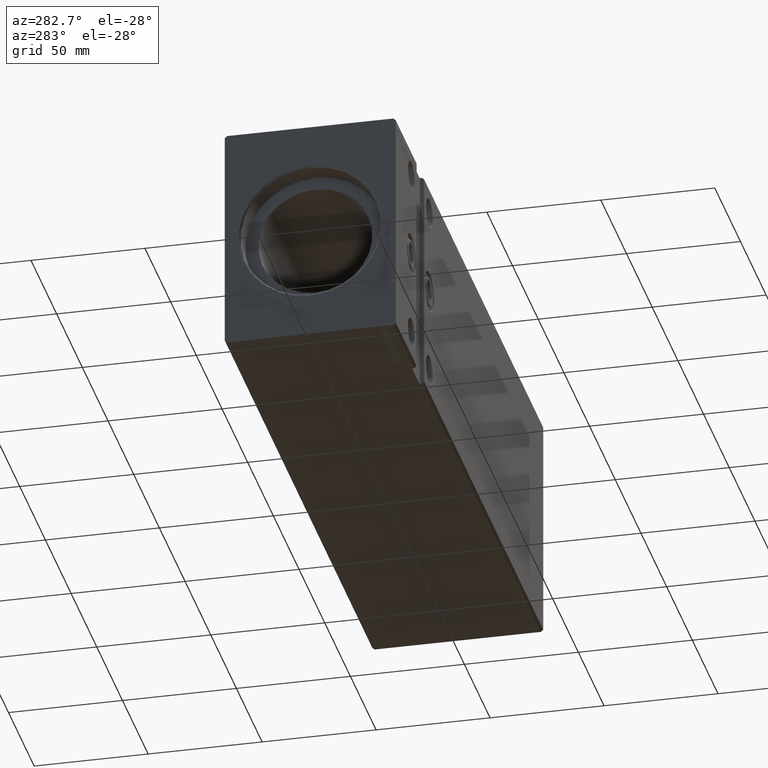
[diagram: clean part render]
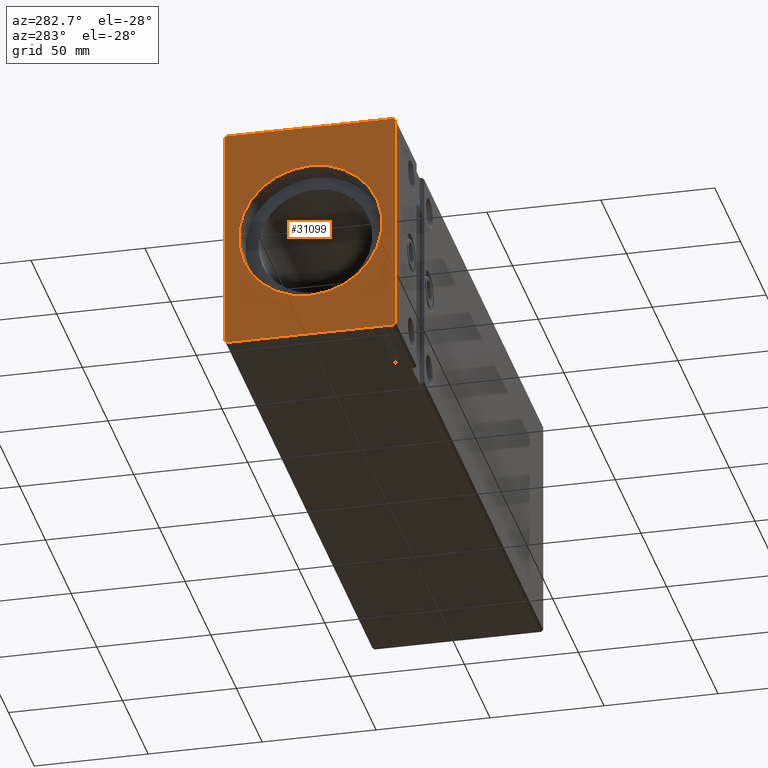
[diagram: same view with one face highlighted and labeled with its STEP entity id]
A machine part, auxiliary view. The second image highlights one B-rep face of the part: STEP entity #31099.
In plain terms, the highlighted planar face has unit normal (1, 0, 0).
Its self-contained STEP definition (entity closure, byte-faithful):
#644 = CIRCLE ( 'NONE', #24320, 31.45000000000008811 ) ;
#803 = CARTESIAN_POINT ( 'NONE',  ( 0.000000000000000000, -36.50000000000000711, -50.00000000000000000 ) ) ;
#1093 = EDGE_CURVE ( 'NONE', #34619, #20611, #16649, .T. ) ;
#1545 = DIRECTION ( 'NONE',  ( 0.000000000000000000, 0.000000000000000000, -1.000000000000000000 ) ) ;
#1587 = DIRECTION ( 'NONE',  ( 0.000000000000000000, -1.000000000000000000, -1.901066822988281457E-16 ) ) ;
#3058 = VERTEX_POINT ( 'NONE', #30773 ) ;
#3745 = DIRECTION ( 'NONE',  ( 1.000000000000000000, 0.000000000000000000, 0.000000000000000000 ) ) ;
#3915 = LINE ( 'NONE', #35020, #33631 ) ;
#4011 = VERTEX_POINT ( 'NONE', #36931 ) ;
#4097 = EDGE_CURVE ( 'NONE', #29917, #3058, #9929, .T. ) ;
#4323 = LINE ( 'NONE', #38317, #31689 ) ;
#4713 = EDGE_CURVE ( 'NONE', #25273, #34619, #3915, .T. ) ;
#5524 = CARTESIAN_POINT ( 'NONE',  ( 0.000000000000000000, -37.50000000000001421, 48.99999999999998579 ) ) ;
#5593 = VECTOR ( 'NONE', #13363, 1000.000000000000000 ) ;
#6792 = DIRECTION ( 'NONE',  ( 0.000000000000000000, 0.7071067811865500152, -0.7071067811865451302 ) ) ;
#6897 = ORIENTED_EDGE ( 'NONE', *, *, #40562, .F. ) ;
#7198 = CARTESIAN_POINT ( 'NONE',  ( 0.000000000000000000, -37.50000000000001421, 48.99999999999998579 ) ) ;
#7402 = DIRECTION ( 'NONE',  ( 0.000000000000000000, -0.7071067811865474617, 0.7071067811865474617 ) ) ;
#8078 = EDGE_CURVE ( 'NONE', #22977, #4011, #21561, .T. ) ;
#9282 = AXIS2_PLACEMENT_3D ( 'NONE', #20191, #3745, #32761 ) ;
#9929 = CIRCLE ( 'NONE', #9282, 31.45000000000008811 ) ;
#10814 = ORIENTED_EDGE ( 'NONE', *, *, #33475, .F. ) ;
#11021 = DIRECTION ( 'NONE',  ( 1.000000000000000000, 0.000000000000000000, 0.000000000000000000 ) ) ;
#13069 = AXIS2_PLACEMENT_3D ( 'NONE', #38570, #35273, #25983 ) ;
#13219 = FACE_BOUND ( 'NONE', #26507, .T. ) ;
#13363 = DIRECTION ( 'NONE',  ( 0.000000000000000000, 1.000000000000000000, 0.000000000000000000 ) ) ;
#14664 = CARTESIAN_POINT ( 'NONE',  ( 0.000000000000000000, 37.50000000000000711, -49.00000000000000000 ) ) ;
#15124 = DIRECTION ( 'NONE',  ( 0.000000000000000000, -0.7071067811865474617, -0.7071067811865474617 ) ) ;
#15174 = CARTESIAN_POINT ( 'NONE',  ( 0.000000000000000000, 37.50000000000000711, -49.00000000000000000 ) ) ;
#15669 = CARTESIAN_POINT ( 'NONE',  ( 0.000000000000000000, -37.50000000000001421, -49.00000000000000000 ) ) ;
#16182 = ORIENTED_EDGE ( 'NONE', *, *, #8078, .F. ) ;
#16649 = LINE ( 'NONE', #803, #5593 ) ;
#17280 = ORIENTED_EDGE ( 'NONE', *, *, #4097, .T. ) ;
#17394 = ORIENTED_EDGE ( 'NONE', *, *, #37992, .F. ) ;
#18217 = LINE ( 'NONE', #33471, #32390 ) ;
#18665 = CARTESIAN_POINT ( 'NONE',  ( 0.000000000000000000, -36.50000000000000711, -50.00000000000000000 ) ) ;
#19770 = ORIENTED_EDGE ( 'NONE', *, *, #36852, .F. ) ;
#19958 = LINE ( 'NONE', #7198, #37362 ) ;
#20009 = PLANE ( 'NONE',  #13069 ) ;
#20191 = CARTESIAN_POINT ( 'NONE',  ( 0.000000000000000000, 0.000000000000000000, 0.000000000000000000 ) ) ;
#20513 = CARTESIAN_POINT ( 'NONE',  ( 0.000000000000000000, 36.50000000000000711, 50.00000000000000000 ) ) ;
#20611 = VERTEX_POINT ( 'NONE', #39228 ) ;
#21136 = ORIENTED_EDGE ( 'NONE', *, *, #28316, .F. ) ;
#21509 = CARTESIAN_POINT ( 'NONE',  ( 0.000000000000000000, 36.50000000000000711, -50.00000000000000000 ) ) ;
#21546 = ORIENTED_EDGE ( 'NONE', *, *, #4713, .F. ) ;
#21561 = LINE ( 'NONE', #15174, #37668 ) ;
#21832 = VECTOR ( 'NONE', #1587, 1000.000000000000000 ) ;
#22977 = VERTEX_POINT ( 'NONE', #14664 ) ;
#23012 = LINE ( 'NONE', #29589, #21832 ) ;
#23116 = VERTEX_POINT ( 'NONE', #5524 ) ;
#23456 = DIRECTION ( 'NONE',  ( 0.000000000000000000, 0.000000000000000000, -1.000000000000000000 ) ) ;
#24320 = AXIS2_PLACEMENT_3D ( 'NONE', #36161, #11021, #1545 ) ;
#25057 = DIRECTION ( 'NONE',  ( 0.000000000000000000, 0.000000000000000000, 1.000000000000000000 ) ) ;
#25207 = LINE ( 'NONE', #21509, #30085 ) ;
#25273 = VERTEX_POINT ( 'NONE', #15669 ) ;
#25983 = DIRECTION ( 'NONE',  ( 0.000000000000000000, 0.000000000000000000, -1.000000000000000000 ) ) ;
#26507 = EDGE_LOOP ( 'NONE', ( #17280, #29993 ) ) ;
#28316 = EDGE_CURVE ( 'NONE', #20611, #22977, #25207, .T. ) ;
#29589 = CARTESIAN_POINT ( 'NONE',  ( 0.000000000000000000, 36.50000000000000711, 50.00000000000000000 ) ) ;
#29917 = VERTEX_POINT ( 'NONE', #33179 ) ;
#29993 = ORIENTED_EDGE ( 'NONE', *, *, #34659, .T. ) ;
#30085 = VECTOR ( 'NONE', #34084, 1000.000000000000114 ) ;
#30492 = ORIENTED_EDGE ( 'NONE', *, *, #1093, .F. ) ;
#30773 = CARTESIAN_POINT ( 'NONE',  ( 0.000000000000000000, 3.851514183318436660E-15, -31.45000000000008811 ) ) ;
#31099 = ADVANCED_FACE ( 'NONE', ( #13219, #38773 ), #20009, .F. ) ;
#31689 = VECTOR ( 'NONE', #7402, 1000.000000000000114 ) ;
#32390 = VECTOR ( 'NONE', #15124, 1000.000000000000114 ) ;
#32761 = DIRECTION ( 'NONE',  ( 0.000000000000000000, 0.000000000000000000, -1.000000000000000000 ) ) ;
#33179 = CARTESIAN_POINT ( 'NONE',  ( 0.000000000000000000, 0.000000000000000000, 31.45000000000008811 ) ) ;
#33471 = CARTESIAN_POINT ( 'NONE',  ( 0.000000000000000000, -36.50000000000001421, 49.99999999999998579 ) ) ;
#33475 = EDGE_CURVE ( 'NONE', #23116, #25273, #19958, .T. ) ;
#33631 = VECTOR ( 'NONE', #6792, 1000.000000000000114 ) ;
#33718 = VERTEX_POINT ( 'NONE', #20513 ) ;
#34084 = DIRECTION ( 'NONE',  ( 0.000000000000000000, 0.7071067811865474617, 0.7071067811865474617 ) ) ;
#34619 = VERTEX_POINT ( 'NONE', #18665 ) ;
#34659 = EDGE_CURVE ( 'NONE', #3058, #29917, #644, .T. ) ;
#35020 = CARTESIAN_POINT ( 'NONE',  ( 0.000000000000000000, -37.50000000000001421, -49.00000000000000000 ) ) ;
#35273 = DIRECTION ( 'NONE',  ( 1.000000000000000000, 0.000000000000000000, 0.000000000000000000 ) ) ;
#35301 = CARTESIAN_POINT ( 'NONE',  ( 0.000000000000000000, -36.50000000000001421, 49.99999999999998579 ) ) ;
#35752 = VERTEX_POINT ( 'NONE', #35301 ) ;
#36109 = EDGE_LOOP ( 'NONE', ( #6897, #16182, #21136, #30492, #21546, #10814, #17394, #19770 ) ) ;
#36161 = CARTESIAN_POINT ( 'NONE',  ( 0.000000000000000000, 0.000000000000000000, 0.000000000000000000 ) ) ;
#36852 = EDGE_CURVE ( 'NONE', #33718, #35752, #23012, .T. ) ;
#36931 = CARTESIAN_POINT ( 'NONE',  ( 0.000000000000000000, 37.50000000000000711, 49.00000000000000000 ) ) ;
#37362 = VECTOR ( 'NONE', #23456, 1000.000000000000000 ) ;
#37668 = VECTOR ( 'NONE', #25057, 1000.000000000000000 ) ;
#37992 = EDGE_CURVE ( 'NONE', #35752, #23116, #18217, .T. ) ;
#38317 = CARTESIAN_POINT ( 'NONE',  ( 0.000000000000000000, 37.50000000000000711, 49.00000000000000000 ) ) ;
#38570 = CARTESIAN_POINT ( 'NONE',  ( 0.000000000000000000, 0.000000000000000000, 0.000000000000000000 ) ) ;
#38773 = FACE_OUTER_BOUND ( 'NONE', #36109, .T. ) ;
#39228 = CARTESIAN_POINT ( 'NONE',  ( 0.000000000000000000, 36.50000000000000711, -50.00000000000000000 ) ) ;
#40562 = EDGE_CURVE ( 'NONE', #4011, #33718, #4323, .T. ) ;